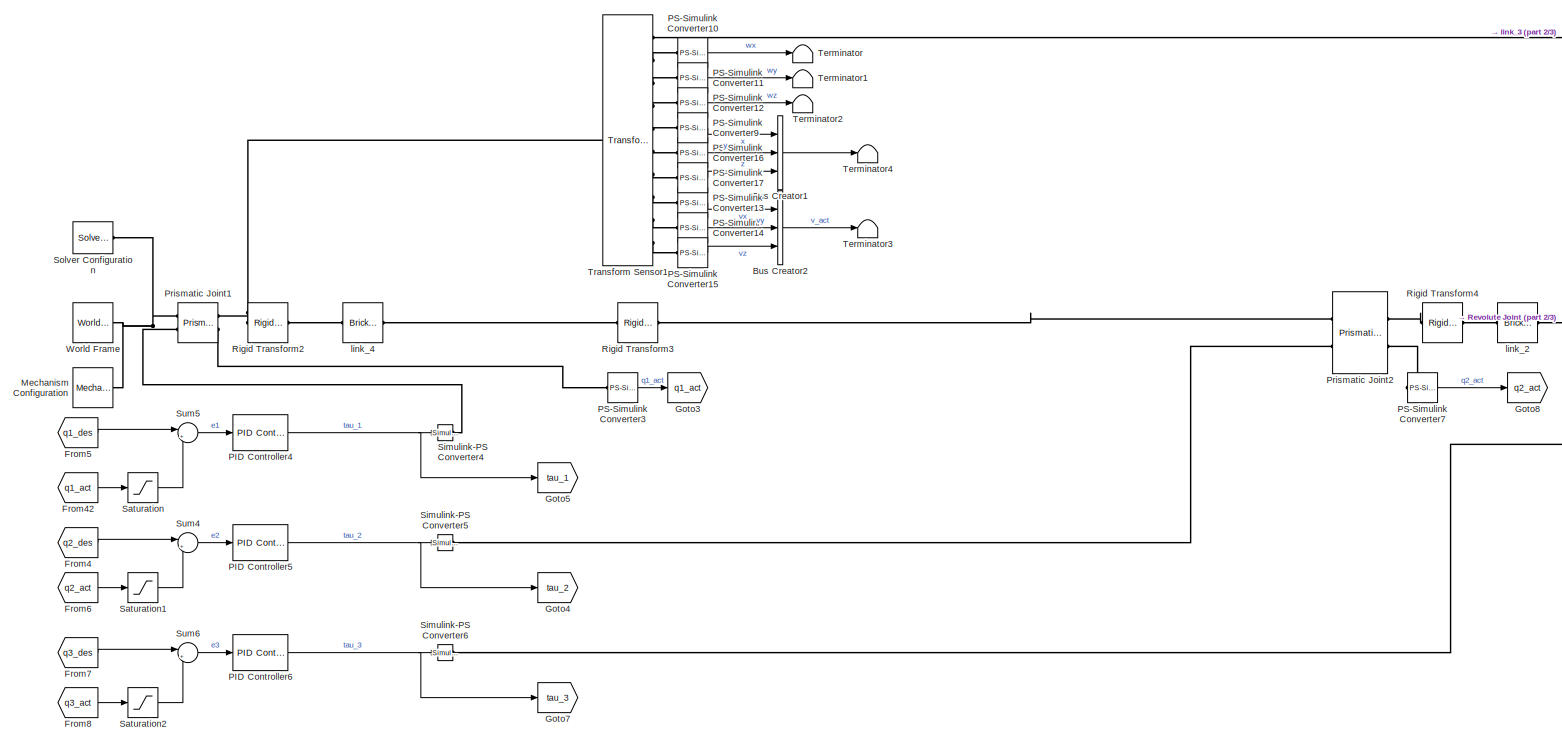
[diagram: root canvas - part 1/3, full width, top band]
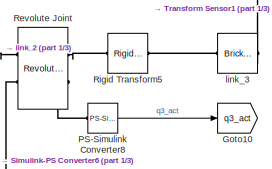
[diagram: root canvas - part 2/3, top right region]
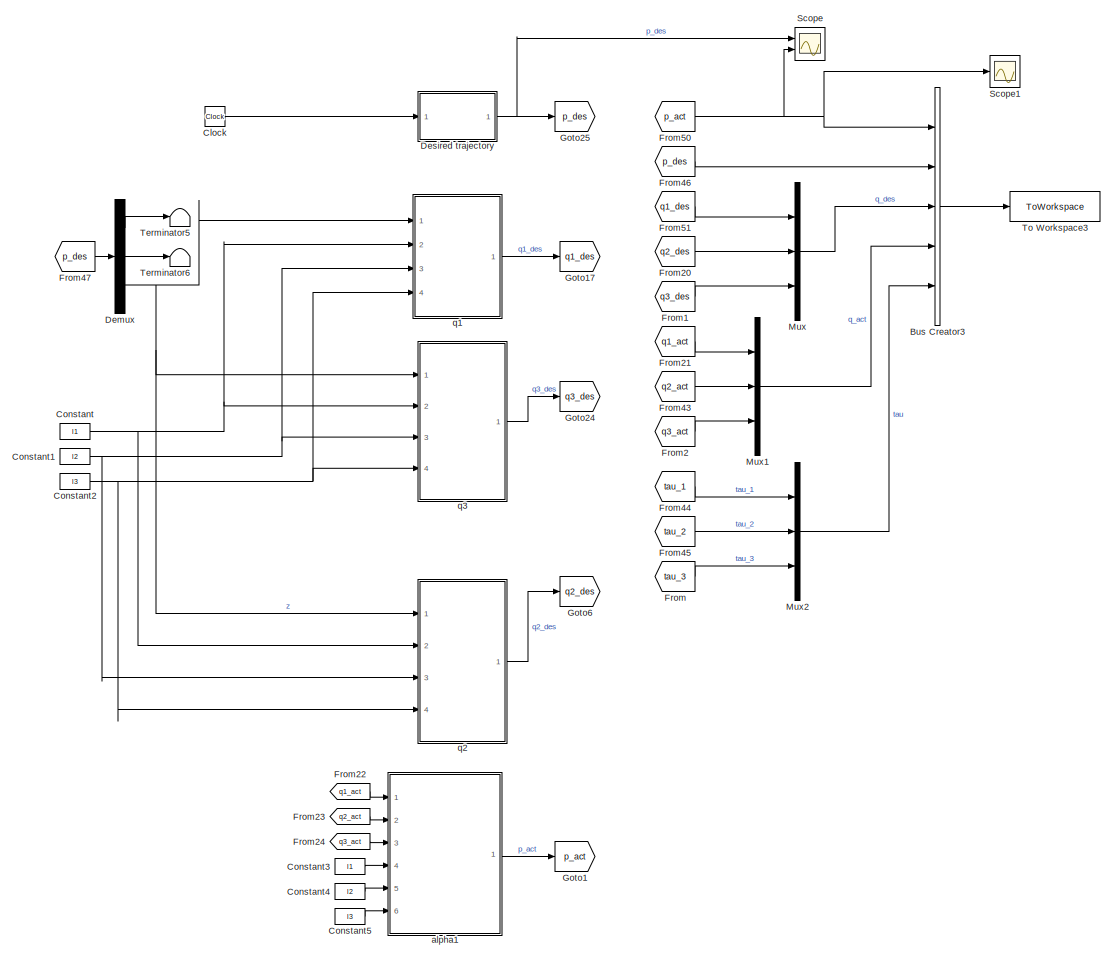
[diagram: root canvas - part 3/3, bottom left region]
MODEL slx_b5ed6384d36a
KIND model
CONFIG AbsTol = auto
CONFIG EnableMultiTasking = off
CONFIG FixedStep = 0.001
CONFIG MaxStep = auto
CONFIG MinStep = auto
CONFIG RelTol = 1e-3
CONFIG SampleTimeConstraint = Unconstrained
CONFIG SolverName = VariableStepAuto
CONFIG StartTime = 0.0
CONFIG StopTime = 20
BLOCK [BusCreator] Bus Creator1
  DisplayOption = bar
  InheritFromInputs = on
  Inputs = 3
  Ports = [3, 1]
BLOCK [BusCreator] Bus Creator2
  DisplayOption = bar
  InheritFromInputs = on
  Inputs = 3
  Ports = [3, 1]
BLOCK [BusCreator] Bus Creator3
  DisplayOption = bar
  InheritFromInputs = on
  Inputs = 5
  Ports = [5, 1]
BLOCK [Clock] Clock
BLOCK [Constant] Constant
  Value = l1
BLOCK [Constant] Constant1
  Value = l2
BLOCK [Constant] Constant2
  Value = l3
BLOCK [Constant] Constant3
  Value = l1
BLOCK [Constant] Constant4
  Value = l2
BLOCK [Constant] Constant5
  Value = l3
BLOCK [Demux] Demux
  Outputs = 3
  Ports = [1, 3]
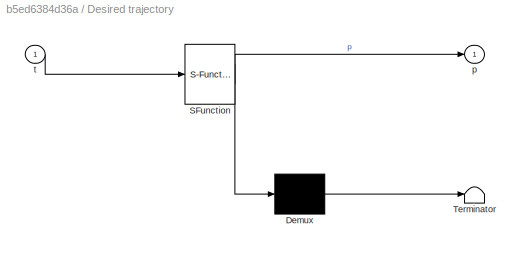
BLOCK [SubSystem] Desired trajectory
  ErrorFcn = Stateflow.Translate.translate
  PermitHierarchicalResolution = ExplicitOnly
  Ports = [1, 1]
  RequestExecContextInheritance = off
  SFBlockType = MATLAB Function
  TreatAsAtomicUnit = on
BLOCK [Demux] Desired trajectory/ Demux 
  Outputs = 1
  Ports = [1, 1]
BLOCK [S-Function] Desired trajectory/ SFunction 
  EnableBusSupport = on
  FunctionName = sf_sfun
  PortCounts = [1 2]
  Ports = [1, 2]
  SFcnIsStateOwnerBlock = off
  SFunctionDeploymentMode = off
  Tag = Stateflow S-Function 10
BLOCK [Terminator] Desired trajectory/ Terminator 
BLOCK [Outport] Desired trajectory/p
BLOCK [Inport] Desired trajectory/t
BLOCK [From] From
  GotoTag = tau_3
BLOCK [From] From1
  GotoTag = q3_des
BLOCK [From] From2
  GotoTag = q3_act
BLOCK [From] From20
  GotoTag = q2_des
BLOCK [From] From21
  GotoTag = q1_act
BLOCK [From] From22
  GotoTag = q1_act
BLOCK [From] From23
  GotoTag = q2_act
BLOCK [From] From24
  GotoTag = q3_act
BLOCK [From] From4
  GotoTag = q2_des
BLOCK [From] From42
  GotoTag = q1_act
BLOCK [From] From43
  GotoTag = q2_act
BLOCK [From] From44
  GotoTag = tau_1
BLOCK [From] From45
  GotoTag = tau_2
BLOCK [From] From46
  GotoTag = p_des
BLOCK [From] From47
  GotoTag = p_des
BLOCK [From] From5
  GotoTag = q1_des
BLOCK [From] From50
  GotoTag = p_act
BLOCK [From] From51
  GotoTag = q1_des
BLOCK [From] From6
  GotoTag = q2_act
BLOCK [From] From7
  GotoTag = q3_des
BLOCK [From] From8
  GotoTag = q3_act
BLOCK [Goto] Goto1
  GotoTag = p_act
BLOCK [Goto] Goto10
  GotoTag = q3_act
BLOCK [Goto] Goto17
  GotoTag = q1_des
BLOCK [Goto] Goto24
  GotoTag = q3_des
BLOCK [Goto] Goto25
  GotoTag = p_des
BLOCK [Goto] Goto3
  GotoTag = q1_act
BLOCK [Goto] Goto4
  GotoTag = tau_2
BLOCK [Goto] Goto5
  GotoTag = tau_1
BLOCK [Goto] Goto6
  GotoTag = q2_des
BLOCK [Goto] Goto7
  GotoTag = tau_3
BLOCK [Goto] Goto8
  GotoTag = q2_act
BLOCK [Reference] Mechanism Configuration  REF=sm_lib/Utilities/Mechanism
Configuration
  Ports = [0, 0, 0, 0, 0, 0, 1]
  SourceBlock = sm_lib/Utilities/Mechanism\nConfiguration
  SourceProductBaseCode = MS
  SourceType = Mechanism\nConfiguration
BLOCK [Mux] Mux
  DisplayOption = bar
  Inputs = 3
  Ports = [3, 1]
BLOCK [Mux] Mux1
  DisplayOption = bar
  Inputs = 3
  Ports = [3, 1]
BLOCK [Mux] Mux2
  DisplayOption = bar
  Inputs = 3
  Ports = [3, 1]
BLOCK [Reference] PID Controller4  REF=pid_lib/PID Controller
  Ports = [1, 1]
  SourceBlock = pid_lib/PID Controller
  SourceProductBaseCode = SL
  SourceType = PID 1dof
BLOCK [Reference] PID Controller5  REF=pid_lib/PID Controller
  Ports = [1, 1]
  SourceBlock = pid_lib/PID Controller
  SourceProductBaseCode = SL
  SourceType = PID 1dof
BLOCK [Reference] PID Controller6  REF=pid_lib/PID Controller
  Ports = [1, 1]
  SourceBlock = pid_lib/PID Controller
  SourceProductBaseCode = SL
  SourceType = PID 1dof
BLOCK [Reference] PS-Simulink Converter10  REF=nesl_utility/PS-Simulink
Converter
  Ports = [0, 1, 0, 0, 0, 1]
  SourceBlock = nesl_utility/PS-Simulink\nConverter
  SourceProductBaseCode = PW,SS
  SourceType = PS-Simulink\nConverter
BLOCK [Reference] PS-Simulink Converter11  REF=nesl_utility/PS-Simulink
Converter
  Ports = [0, 1, 0, 0, 0, 1]
  SourceBlock = nesl_utility/PS-Simulink\nConverter
  SourceProductBaseCode = PW,SS
  SourceType = PS-Simulink\nConverter
BLOCK [Reference] PS-Simulink Converter12  REF=nesl_utility/PS-Simulink
Converter
  Ports = [0, 1, 0, 0, 0, 1]
  SourceBlock = nesl_utility/PS-Simulink\nConverter
  SourceProductBaseCode = PW,SS
  SourceType = PS-Simulink\nConverter
BLOCK [Reference] PS-Simulink Converter13  REF=nesl_utility/PS-Simulink
Converter
  Ports = [0, 1, 0, 0, 0, 1]
  SourceBlock = nesl_utility/PS-Simulink\nConverter
  SourceProductBaseCode = PW,SS
  SourceType = PS-Simulink\nConverter
BLOCK [Reference] PS-Simulink Converter14  REF=nesl_utility/PS-Simulink
Converter
  Ports = [0, 1, 0, 0, 0, 1]
  SourceBlock = nesl_utility/PS-Simulink\nConverter
  SourceProductBaseCode = PW,SS
  SourceType = PS-Simulink\nConverter
BLOCK [Reference] PS-Simulink Converter15  REF=nesl_utility/PS-Simulink
Converter
  Ports = [0, 1, 0, 0, 0, 1]
  SourceBlock = nesl_utility/PS-Simulink\nConverter
  SourceProductBaseCode = PW,SS
  SourceType = PS-Simulink\nConverter
BLOCK [Reference] PS-Simulink Converter16  REF=nesl_utility/PS-Simulink
Converter
  Ports = [0, 1, 0, 0, 0, 1]
  SourceBlock = nesl_utility/PS-Simulink\nConverter
  SourceProductBaseCode = PW,SS
  SourceType = PS-Simulink\nConverter
BLOCK [Reference] PS-Simulink Converter17  REF=nesl_utility/PS-Simulink
Converter
  Ports = [0, 1, 0, 0, 0, 1]
  SourceBlock = nesl_utility/PS-Simulink\nConverter
  SourceProductBaseCode = PW,SS
  SourceType = PS-Simulink\nConverter
BLOCK [Reference] PS-Simulink Converter3  REF=nesl_utility/PS-Simulink
Converter
  Ports = [0, 1, 0, 0, 0, 1]
  SourceBlock = nesl_utility/PS-Simulink\nConverter
  SourceProductBaseCode = PW,SS
  SourceType = PS-Simulink\nConverter
BLOCK [Reference] PS-Simulink Converter7  REF=nesl_utility/PS-Simulink
Converter
  Ports = [0, 1, 0, 0, 0, 1]
  SourceBlock = nesl_utility/PS-Simulink\nConverter
  SourceProductBaseCode = PW,SS
  SourceType = PS-Simulink\nConverter
BLOCK [Reference] PS-Simulink Converter8  REF=nesl_utility/PS-Simulink
Converter
  Ports = [0, 1, 0, 0, 0, 1]
  SourceBlock = nesl_utility/PS-Simulink\nConverter
  SourceProductBaseCode = PW,SS
  SourceType = PS-Simulink\nConverter
BLOCK [Reference] PS-Simulink Converter9  REF=nesl_utility/PS-Simulink
Converter
  Ports = [0, 1, 0, 0, 0, 1]
  SourceBlock = nesl_utility/PS-Simulink\nConverter
  SourceProductBaseCode = PW,SS
  SourceType = PS-Simulink\nConverter
BLOCK [Reference] Prismatic Joint1  REF=sm_lib/Joints/Prismatic
Joint
  Ports = [0, 0, 0, 0, 0, 2, 2]
  SourceBlock = sm_lib/Joints/Prismatic\nJoint
  SourceProductBaseCode = MS
  SourceType = Prismatic\nJoint
BLOCK [Reference] Prismatic Joint2  REF=sm_lib/Joints/Prismatic
Joint
  Ports = [0, 0, 0, 0, 0, 2, 2]
  SourceBlock = sm_lib/Joints/Prismatic\nJoint
  SourceProductBaseCode = MS
  SourceType = Prismatic\nJoint
BLOCK [Reference] Revolute Joint  REF=sm_lib/Joints/Revolute Joint
  Ports = [0, 0, 0, 0, 0, 2, 2]
  SourceBlock = sm_lib/Joints/Revolute Joint
  SourceProductBaseCode = MS
  SourceType = Revolute Joint
BLOCK [Reference] Rigid Transform2  REF=sm_lib/Frames and
Transforms/Rigid
Transform
  Ports = [0, 0, 0, 0, 0, 1, 1]
  SourceBlock = sm_lib/Frames and\nTransforms/Rigid\nTransform
  SourceProductBaseCode = MS
  SourceType = Rigid\nTransform
BLOCK [Reference] Rigid Transform3  REF=sm_lib/Frames and
Transforms/Rigid
Transform
  Ports = [0, 0, 0, 0, 0, 1, 1]
  SourceBlock = sm_lib/Frames and\nTransforms/Rigid\nTransform
  SourceProductBaseCode = MS
  SourceType = Rigid\nTransform
BLOCK [Reference] Rigid Transform4  REF=sm_lib/Frames and
Transforms/Rigid
Transform
  Ports = [0, 0, 0, 0, 0, 1, 1]
  SourceBlock = sm_lib/Frames and\nTransforms/Rigid\nTransform
  SourceProductBaseCode = MS
  SourceType = Rigid\nTransform
BLOCK [Reference] Rigid Transform5  REF=sm_lib/Frames and
Transforms/Rigid
Transform
  Ports = [0, 0, 0, 0, 0, 1, 1]
  SourceBlock = sm_lib/Frames and\nTransforms/Rigid\nTransform
  SourceProductBaseCode = MS
  SourceType = Rigid\nTransform
BLOCK [Saturate] Saturation
  LowerLimit = -0.23
  UpperLimit = 0.23
BLOCK [Saturate] Saturation1
  LowerLimit = -0.43
  UpperLimit = 0.43
BLOCK [Saturate] Saturation2
  LowerLimit = -0.19
  UpperLimit = 0.19
BLOCK [Scope] Scope
  Floating = off
  NumInputPorts = 2
  Ports = [2]
  ScopeSpecificationString = Simulink.scopes.TimeScopeBlockCfg('CurrentConfiguration', extmgr.ConfigurationSet(extmgr.Configuration('Core','General UI',true),extmgr.Configuration('Core','Source UI',true),extmgr.Configuration('Sources','WiredSimulink',true),extmgr.Configuration('Visuals','Time Domain',true,'SerializedDisplays',{struct('MinYLimReal','-0.125','MaxYLimReal','1.125','YLabelReal','','MinYLimMag','0.00000','MaxYLimM...<+1347ch>
BLOCK [Scope] Scope1
  Floating = off
  NumInputPorts = 1
  Ports = [1]
  ScopeSpecificationString = Simulink.scopes.TimeScopeBlockCfg('CurrentConfiguration', extmgr.ConfigurationSet(extmgr.Configuration('Core','General UI',true),extmgr.Configuration('Core','Source UI',true),extmgr.Configuration('Sources','WiredSimulink',true,'DataLoggingVariableName','ScopeData1'),extmgr.Configuration('Visuals','Time Domain',true,'SerializedDisplays',{struct('MinYLimReal','-0.099','MaxYLimReal','0.89097','YLabel...<+1388ch>
BLOCK [Reference] Simulink-PS Converter4  REF=nesl_utility/Simulink-PS
Converter
  Ports = [1, 0, 0, 0, 0, 0, 1]
  SourceBlock = nesl_utility/Simulink-PS\nConverter
  SourceProductBaseCode = PW,SS
  SourceType = Simulink-PS\nConverter
BLOCK [Reference] Simulink-PS Converter5  REF=nesl_utility/Simulink-PS
Converter
  Ports = [1, 0, 0, 0, 0, 0, 1]
  SourceBlock = nesl_utility/Simulink-PS\nConverter
  SourceProductBaseCode = PW,SS
  SourceType = Simulink-PS\nConverter
BLOCK [Reference] Simulink-PS Converter6  REF=nesl_utility/Simulink-PS
Converter
  Ports = [1, 0, 0, 0, 0, 0, 1]
  SourceBlock = nesl_utility/Simulink-PS\nConverter
  SourceProductBaseCode = PW,SS
  SourceType = Simulink-PS\nConverter
BLOCK [Reference] Solver Configuration  REF=nesl_utility/Solver
Configuration
  Ports = [0, 0, 0, 0, 0, 0, 1]
  SourceBlock = nesl_utility/Solver\nConfiguration
  SourceProductBaseCode = PW,SS
  SourceType = Solver\nConfiguration
BLOCK [Sum] Sum4
  Inputs = |+-
  Ports = [2, 1]
BLOCK [Sum] Sum5
  Inputs = |+-
  Ports = [2, 1]
BLOCK [Sum] Sum6
  Inputs = |+-
  Ports = [2, 1]
BLOCK [Terminator] Terminator
BLOCK [Terminator] Terminator1
BLOCK [Terminator] Terminator2
BLOCK [Terminator] Terminator3
BLOCK [Terminator] Terminator4
BLOCK [Terminator] Terminator5
BLOCK [Terminator] Terminator6
BLOCK [ToWorkspace] To Workspace3
  FixptAsFi = on
  MaxDataPoints = inf
  Ports = [1]
  SampleTime = -1
  SaveFormat = Timeseries
  VariableName = outputs
BLOCK [Reference] Transform Sensor1  REF=sm_lib/Frames and
Transforms/Transform
Sensor
  Ports = [0, 0, 0, 0, 0, 1, 10]
  SourceBlock = sm_lib/Frames and\nTransforms/Transform\nSensor
  SourceProductBaseCode = MS
  SourceType = Transform\nSensor
BLOCK [Reference] World Frame  REF=sm_lib/Frames and
Transforms/World Frame
  Ports = [0, 0, 0, 0, 0, 0, 1]
  SourceBlock = sm_lib/Frames and\nTransforms/World Frame
  SourceProductBaseCode = MS
  SourceType = World Frame
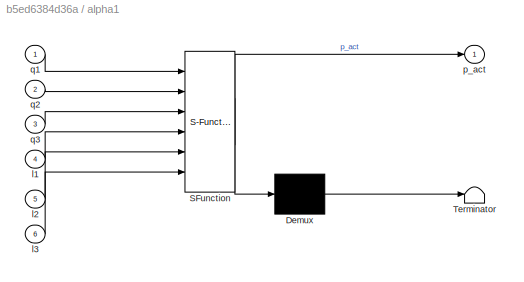
BLOCK [SubSystem] alpha1
  ErrorFcn = Stateflow.Translate.translate
  PermitHierarchicalResolution = ExplicitOnly
  Ports = [6, 1]
  RequestExecContextInheritance = off
  SFBlockType = MATLAB Function
  TreatAsAtomicUnit = on
BLOCK [Demux] alpha1/ Demux 
  Outputs = 1
  Ports = [1, 1]
BLOCK [S-Function] alpha1/ SFunction 
  EnableBusSupport = on
  FunctionName = sf_sfun
  PortCounts = [6 2]
  Ports = [6, 2]
  SFcnIsStateOwnerBlock = off
  SFunctionDeploymentMode = off
  Tag = Stateflow S-Function 4
BLOCK [Terminator] alpha1/ Terminator 
BLOCK [Inport] alpha1/l1
  Port = 4
BLOCK [Inport] alpha1/l2
  Port = 5
BLOCK [Inport] alpha1/l3
  Port = 6
BLOCK [Outport] alpha1/p_act
BLOCK [Inport] alpha1/q1
BLOCK [Inport] alpha1/q2
  Port = 2
BLOCK [Inport] alpha1/q3
  Port = 3
BLOCK [Reference] link_2  REF=sm_lib/Body Elements/Brick Solid
  Ports = [0, 0, 0, 0, 0, 1, 1]
  SourceBlock = sm_lib/Body Elements/Brick Solid
  SourceProductBaseCode = MS
  SourceType = Brick Solid
BLOCK [Reference] link_3  REF=sm_lib/Body Elements/Brick Solid
  Ports = [0, 0, 0, 0, 0, 1, 1]
  SourceBlock = sm_lib/Body Elements/Brick Solid
  SourceProductBaseCode = MS
  SourceType = Brick Solid
BLOCK [Reference] link_4  REF=sm_lib/Body Elements/Brick Solid
  Ports = [0, 0, 0, 0, 0, 1, 1]
  SourceBlock = sm_lib/Body Elements/Brick Solid
  SourceProductBaseCode = MS
  SourceType = Brick Solid
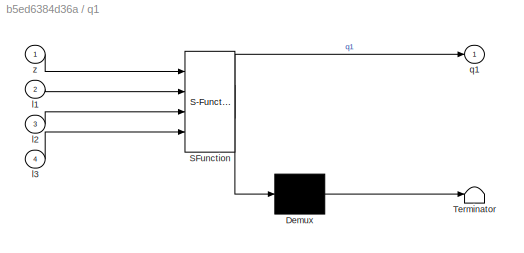
BLOCK [SubSystem] q1
  ErrorFcn = Stateflow.Translate.translate
  PermitHierarchicalResolution = ExplicitOnly
  Ports = [4, 1]
  RequestExecContextInheritance = off
  SFBlockType = MATLAB Function
  TreatAsAtomicUnit = on
BLOCK [Demux] q1/ Demux 
  Outputs = 1
  Ports = [1, 1]
BLOCK [S-Function] q1/ SFunction 
  EnableBusSupport = on
  FunctionName = sf_sfun
  PortCounts = [4 2]
  Ports = [4, 2]
  SFcnIsStateOwnerBlock = off
  SFunctionDeploymentMode = off
  Tag = Stateflow S-Function 11
BLOCK [Terminator] q1/ Terminator 
BLOCK [Inport] q1/l1
  Port = 2
BLOCK [Inport] q1/l2
  Port = 3
BLOCK [Inport] q1/l3
  Port = 4
BLOCK [Outport] q1/q1
BLOCK [Inport] q1/z
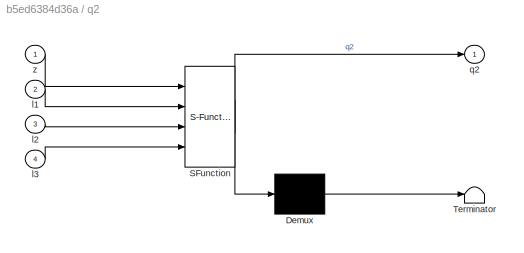
BLOCK [SubSystem] q2
  ErrorFcn = Stateflow.Translate.translate
  PermitHierarchicalResolution = ExplicitOnly
  Ports = [4, 1]
  RequestExecContextInheritance = off
  SFBlockType = MATLAB Function
  TreatAsAtomicUnit = on
BLOCK [Demux] q2/ Demux 
  Outputs = 1
  Ports = [1, 1]
BLOCK [S-Function] q2/ SFunction 
  EnableBusSupport = on
  FunctionName = sf_sfun
  PortCounts = [4 2]
  Ports = [4, 2]
  SFcnIsStateOwnerBlock = off
  SFunctionDeploymentMode = off
  Tag = Stateflow S-Function 13
BLOCK [Terminator] q2/ Terminator 
BLOCK [Inport] q2/l1
  Port = 2
BLOCK [Inport] q2/l2
  Port = 3
BLOCK [Inport] q2/l3
  Port = 4
BLOCK [Outport] q2/q2
BLOCK [Inport] q2/z
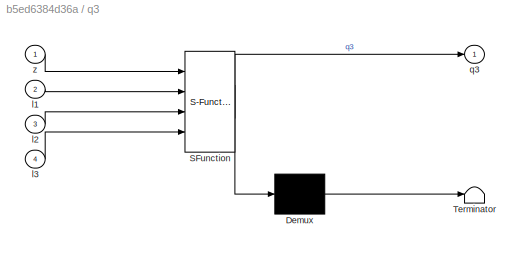
BLOCK [SubSystem] q3
  ErrorFcn = Stateflow.Translate.translate
  PermitHierarchicalResolution = ExplicitOnly
  Ports = [4, 1]
  RequestExecContextInheritance = off
  SFBlockType = MATLAB Function
  TreatAsAtomicUnit = on
BLOCK [Demux] q3/ Demux 
  Outputs = 1
  Ports = [1, 1]
BLOCK [S-Function] q3/ SFunction 
  EnableBusSupport = on
  FunctionName = sf_sfun
  PortCounts = [4 2]
  Ports = [4, 2]
  SFcnIsStateOwnerBlock = off
  SFunctionDeploymentMode = off
  Tag = Stateflow S-Function 12
BLOCK [Terminator] q3/ Terminator 
BLOCK [Inport] q3/l1
  Port = 2
BLOCK [Inport] q3/l2
  Port = 3
BLOCK [Inport] q3/l3
  Port = 4
BLOCK [Outport] q3/q3
BLOCK [Inport] q3/z
LINE Bus Creator1:1 -> Terminator4:1
LINE Bus Creator2:1 -> Terminator3:1
LINE Bus Creator3:1 -> To Workspace3:1
LINE Clock:1 -> Desired trajectory:1
NET Constant1:1 -> q1:3, q2:3, q3:3
NET Constant2:1 -> q1:4, q2:4, q3:4
LINE Constant3:1 -> alpha1:4
LINE Constant4:1 -> alpha1:5
LINE Constant5:1 -> alpha1:6
NET Constant:1 -> q1:2, q2:2, q3:2
LINE Demux:1 -> Terminator5:1
LINE Demux:2 -> Terminator6:1
NET Demux:3 -> q1:1, q2:1, q3:1
NET Desired trajectory:1 -> Goto25:1, Scope:1
LINE From1:1 -> Mux:3
LINE From20:1 -> Mux:2
LINE From21:1 -> Mux1:1
LINE From22:1 -> alpha1:1
LINE From23:1 -> alpha1:2
LINE From24:1 -> alpha1:3
LINE From2:1 -> Mux1:3
LINE From42:1 -> Saturation:1
LINE From43:1 -> Mux1:2
LINE From44:1 -> Mux2:1
LINE From45:1 -> Mux2:2
LINE From46:1 -> Bus Creator3:2
LINE From47:1 -> Demux:1
LINE From4:1 -> Sum4:1
NET From50:1 -> Bus Creator3:1, Scope1:1, Scope:2
LINE From51:1 -> Mux:1
LINE From5:1 -> Sum5:1
LINE From6:1 -> Saturation1:1
LINE From7:1 -> Sum6:1
LINE From8:1 -> Saturation2:1
LINE From:1 -> Mux2:3
LINE Mux1:1 -> Bus Creator3:4
LINE Mux2:1 -> Bus Creator3:5
LINE Mux:1 -> Bus Creator3:3
NET PID Controller4:1 -> Goto5:1, Simulink-PS Converter4:1
NET PID Controller5:1 -> Goto4:1, Simulink-PS Converter5:1
NET PID Controller6:1 -> Goto7:1, Simulink-PS Converter6:1
LINE PS-Simulink Converter10:1 -> Terminator:1
LINE PS-Simulink Converter11:1 -> Terminator1:1
LINE PS-Simulink Converter12:1 -> Terminator2:1
LINE PS-Simulink Converter13:1 -> Bus Creator2:1
LINE PS-Simulink Converter14:1 -> Bus Creator2:2
LINE PS-Simulink Converter15:1 -> Bus Creator2:3
LINE PS-Simulink Converter16:1 -> Bus Creator1:2
LINE PS-Simulink Converter17:1 -> Bus Creator1:3
LINE PS-Simulink Converter3:1 -> Goto3:1
LINE PS-Simulink Converter7:1 -> Goto8:1
LINE PS-Simulink Converter8:1 -> Goto10:1
LINE PS-Simulink Converter9:1 -> Bus Creator1:1
LINE Saturation1:1 -> Sum4:2
LINE Saturation2:1 -> Sum6:2
LINE Saturation:1 -> Sum5:2
LINE Sum4:1 -> PID Controller5:1
LINE Sum5:1 -> PID Controller4:1
LINE Sum6:1 -> PID Controller6:1
LINE alpha1:1 -> Goto1:1
LINE q1:1 -> Goto17:1
LINE q2:1 -> Goto6:1
LINE q3:1 -> Goto24:1
PNET net1: Mechanism Configuration:RConn1 -- Prismatic Joint1:LConn1 -- Solver Configuration:RConn1 -- World Frame:RConn1
PLINE PS-Simulink Converter10:LConn1 -- Transform Sensor1:RConn2
PLINE PS-Simulink Converter11:LConn1 -- Transform Sensor1:RConn3
PLINE PS-Simulink Converter12:LConn1 -- Transform Sensor1:RConn4
PLINE PS-Simulink Converter13:LConn1 -- Transform Sensor1:RConn8
PLINE PS-Simulink Converter14:LConn1 -- Transform Sensor1:RConn9
PLINE PS-Simulink Converter15:LConn1 -- Transform Sensor1:RConn10
PLINE PS-Simulink Converter16:LConn1 -- Transform Sensor1:RConn6
PLINE PS-Simulink Converter17:LConn1 -- Transform Sensor1:RConn7
PLINE PS-Simulink Converter3:LConn1 -- Prismatic Joint1:RConn2
PLINE PS-Simulink Converter7:LConn1 -- Prismatic Joint2:RConn2
PLINE PS-Simulink Converter8:LConn1 -- Revolute Joint:RConn2
PLINE PS-Simulink Converter9:LConn1 -- Transform Sensor1:RConn5
PLINE Prismatic Joint1:LConn2 -- Simulink-PS Converter4:RConn1
PNET net2: Prismatic Joint1:RConn1 -- Rigid Transform2:LConn1 -- Transform Sensor1:LConn1
PLINE Prismatic Joint2:LConn1 -- Rigid Transform3:RConn1
PLINE Prismatic Joint2:LConn2 -- Simulink-PS Converter5:RConn1
PLINE Prismatic Joint2:RConn1 -- Rigid Transform4:LConn1
PLINE Revolute Joint:LConn1 -- link_2:RConn1
PLINE Revolute Joint:LConn2 -- Simulink-PS Converter6:RConn1
PLINE Revolute Joint:RConn1 -- Rigid Transform5:LConn1
PLINE Rigid Transform2:RConn1 -- link_4:LConn1
PLINE Rigid Transform3:LConn1 -- link_4:RConn1
PLINE Rigid Transform4:RConn1 -- link_2:LConn1
PLINE Rigid Transform5:RConn1 -- link_3:LConn1
PLINE Transform Sensor1:RConn1 -- link_3:RConn1
note: NET lines group one-source signal fan-out (src -> all destinations, sorted); 1:1 wires keep LINE; PNET lines group multi-terminal physical nets as a canonical sorted terminal list (undirected conserving connections); 2-terminal nets keep the pairwise PLINE form
CHART alpha1 states=1 transitions=1
  STATE_LABEL 'eML_blk_kernel()'
  STATE_LABEL 'SCRIPT:\nfunction p_act = fcn(q1,q2,q3,l1,l2,l3)\n% p_act = [l1*cos(q1)+l2*cos(q1+q2); l1*sin(q1)+l2*sin(q1+q2)];\np_act=[0;\n       0;\n       q1+q2+l1+l2];\n'
CHART Desired trajectory states=1 transitions=1
  STATE_LABEL 'eML_blk_kernel()'
  STATE_LABEL 'SCRIPT:\nfunction p = fcn(t)\np = [0;...\n     0;...\n     abs(0.8*cos(0.5*t))+0.2];\n '
CHART q1 states=1 transitions=1
  STATE_LABEL 'eML_blk_kernel()'
  STATE_LABEL 'SCRIPT:\nfunction q1 = fcn(z, l1, l2, l3)\nqt = z-(l1+l2+l3);\nq1=0.271*qt;\n\n% q1 = atan2(y,x)+pi;\n% As long as x,y \\neq 0 both these solutions are valid\n% When x,y = 0 the arm is in a singular configuration \n% and there are infinitely many possible solutions for q1.\n'
CHART q3 states=1 transitions=1
  STATE_LABEL 'eML_blk_kernel()'
  STATE_LABEL 'SCRIPT:\nfunction q3 = fcn(z,l1,l2,l3)\n% D = (x^2 + y^2 + z^2 - l2^2 -l3^2)/(2*l_2*l_3);\n% q3 = atan2(sqrt(1-D^2), D);\nqt = z-(l1+l2+l3);\nq1=0.271*qt;\nq2=0.506*qt;\nq3=atan2(q1,q2);\n\n\n'
CHART q2 states=1 transitions=1
  STATE_LABEL 'eML_blk_kernel()'
  STATE_LABEL 'SCRIPT:\nfunction q2 = fcn(z, l1, l2, l3)\n% q2 = atan2(z, sqrt(x^2 + y^2)) - atan2(l3*sin(q3), l2+l3*cos(q3));\nqt = z-(l1+l2+l3);\nq2=0.506*qt;\n\n\n'
CHART  states=0 transitions=0
CHART  states=0 transitions=0
CHART  states=0 transitions=0
CHART  states=0 transitions=0
CHART  states=0 transitions=0
